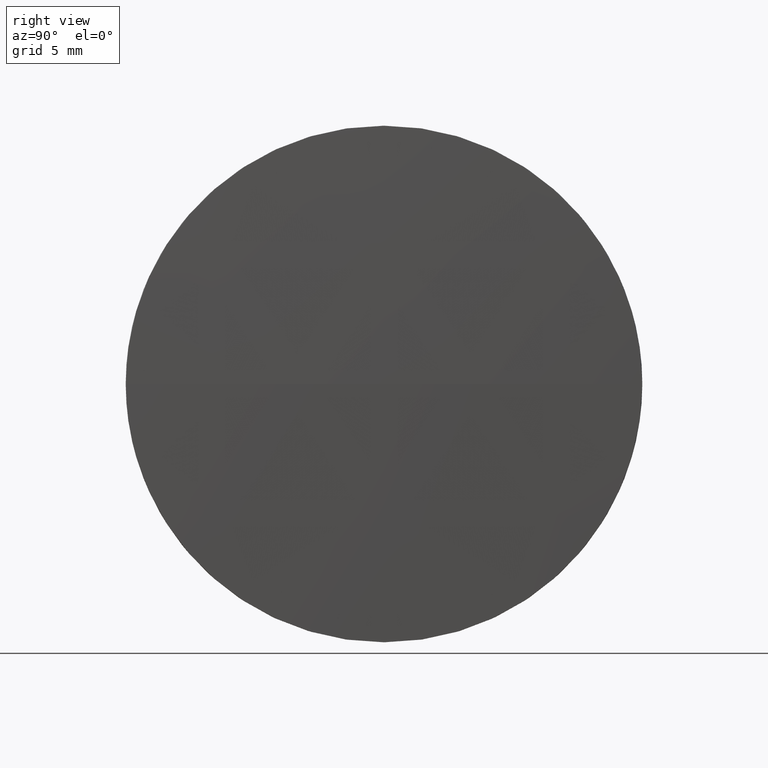
[diagram: clean part render]
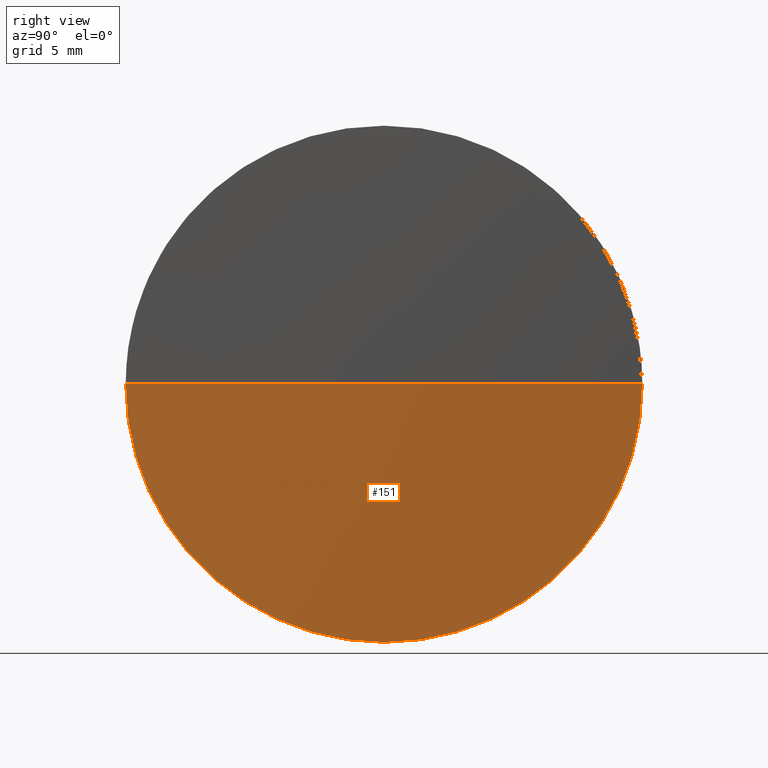
[diagram: same view with one face highlighted and labeled with its STEP entity id]
A machine part, right view. The second image highlights one B-rep face of the part: STEP entity #151.
In plain terms, the highlighted spherical surface has radius 390.725 mm.
Its self-contained STEP definition (entity closure, byte-faithful):
#2 = VERTEX_POINT ( 'NONE', #161 ) ;
#3 = CARTESIAN_POINT ( 'NONE',  ( 468.4651575666903200, 120.4458645264297700, -12.50000000000001100 ) ) ;
#7 = DIRECTION ( 'NONE',  ( -0.0000000000000000000, 0.0000000000000000000, -1.000000000000000000 ) ) ;
#15 = EDGE_LOOP ( 'NONE', ( #98, #109, #171, #125 ) ) ;
#27 = CARTESIAN_POINT ( 'NONE',  ( 77.94015756669587300, 120.4458645264289900, 0.0000000000000000000 ) ) ;
#28 = AXIS2_PLACEMENT_3D ( 'NONE', #183, #120, #103 ) ;
#29 = VERTEX_POINT ( 'NONE', #112 ) ;
#30 = VERTEX_POINT ( 'NONE', #3 ) ;
#35 = CIRCLE ( 'NONE', #111, 390.7249999999944500 ) ;
#39 = DIRECTION ( 'NONE',  ( -0.0000000000000000000, 0.0000000000000000000, 1.000000000000000000 ) ) ;
#45 = AXIS2_PLACEMENT_3D ( 'NONE', #128, #39, #132 ) ;
#50 = FACE_OUTER_BOUND ( 'NONE', #15, .T. ) ;
#52 = EDGE_CURVE ( 'NONE', #108, #29, #35, .T. ) ;
#65 = CIRCLE ( 'NONE', #130, 12.50000000000001100 ) ;
#72 = DIRECTION ( 'NONE',  ( 0.0000000000000000000, 1.224646799147353200E-016, -1.000000000000000000 ) ) ;
#75 = CIRCLE ( 'NONE', #45, 390.7249999999944500 ) ;
#76 = DIRECTION ( 'NONE',  ( 0.0000000000000000000, 1.000000000000000000, 1.224646799147353200E-016 ) ) ;
#78 = CARTESIAN_POINT ( 'NONE',  ( 468.6651575666903100, 120.4458645264290200, 0.0000000000000000000 ) ) ;
#79 = DIRECTION ( 'NONE',  ( 0.0000000000000000000, 0.0000000000000000000, 1.000000000000000000 ) ) ;
#87 = EDGE_CURVE ( 'NONE', #108, #2, #75, .T. ) ;
#98 = ORIENTED_EDGE ( 'NONE', *, *, #87, .F. ) ;
#99 = CARTESIAN_POINT ( 'NONE',  ( 77.94015756669587300, 120.4458645264289900, 0.0000000000000000000 ) ) ;
#103 = DIRECTION ( 'NONE',  ( 0.0000000000000000000, 0.0000000000000000000, 1.000000000000000000 ) ) ;
#106 = EDGE_CURVE ( 'NONE', #2, #30, #147, .T. ) ;
#108 = VERTEX_POINT ( 'NONE', #78 ) ;
#109 = ORIENTED_EDGE ( 'NONE', *, *, #52, .T. ) ;
#111 = AXIS2_PLACEMENT_3D ( 'NONE', #99, #72, #76 ) ;
#112 = CARTESIAN_POINT ( 'NONE',  ( 468.4651575666903800, 107.9458645264300000, -1.530808498934068300E-015 ) ) ;
#119 = DIRECTION ( 'NONE',  ( 0.0000000000000000000, 1.000000000000000000, 0.0000000000000000000 ) ) ;
#120 = DIRECTION ( 'NONE',  ( -1.000000000000000000, -0.0000000000000000000, -0.0000000000000000000 ) ) ;
#125 = ORIENTED_EDGE ( 'NONE', *, *, #106, .F. ) ;
#128 = CARTESIAN_POINT ( 'NONE',  ( 77.94015756669587300, 120.4458645264289900, 0.0000000000000000000 ) ) ;
#130 = AXIS2_PLACEMENT_3D ( 'NONE', #154, #134, #79 ) ;
#132 = DIRECTION ( 'NONE',  ( 1.000000000000000000, 0.0000000000000000000, 0.0000000000000000000 ) ) ;
#134 = DIRECTION ( 'NONE',  ( -1.000000000000000000, -0.0000000000000000000, -0.0000000000000000000 ) ) ;
#145 = SPHERICAL_SURFACE ( 'NONE', #146, 390.7249999999944500 ) ;
#146 = AXIS2_PLACEMENT_3D ( 'NONE', #27, #7, #119 ) ;
#147 = CIRCLE ( 'NONE', #28, 12.50000000000001100 ) ;
#151 = ADVANCED_FACE ( 'NONE', ( #50 ), #145, .T. ) ;
#154 = CARTESIAN_POINT ( 'NONE',  ( 468.4651575666903200, 120.4458645264297700, 0.0000000000000000000 ) ) ;
#161 = CARTESIAN_POINT ( 'NONE',  ( 468.4651575666903800, 132.9458645264287500, 0.0000000000000000000 ) ) ;
#171 = ORIENTED_EDGE ( 'NONE', *, *, #174, .F. ) ;
#174 = EDGE_CURVE ( 'NONE', #30, #29, #65, .T. ) ;
#183 = CARTESIAN_POINT ( 'NONE',  ( 468.4651575666903200, 120.4458645264297700, 0.0000000000000000000 ) ) ;